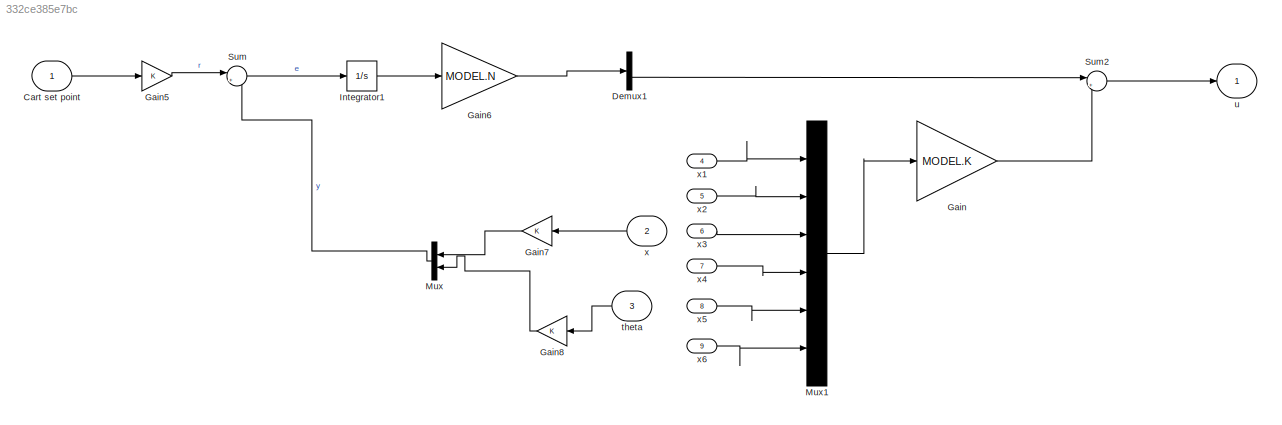
MODEL slx_332ce385e7bc
KIND model
CONFIG AbsTol = auto
CONFIG EnableMultiTasking = on
CONFIG FixedStep = auto
CONFIG MaxStep = auto
CONFIG MinStep = auto
CONFIG RelTol = 1e-3
CONFIG SampleTimeConstraint = Unconstrained
CONFIG SolverName = ode45
CONFIG StartTime = 0.0
CONFIG StopTime = 200.0
BLOCK [Inport] Cart set point
BLOCK [Demux] Demux1
  Outputs = 2
BLOCK [Gain] Gain
  Gain = MODEL.K
  Multiplication = Matrix(K*u)
BLOCK [Gain] Gain5
BLOCK [Gain] Gain6
  Gain = MODEL.N
BLOCK [Gain] Gain7
  NameLocation = top
BLOCK [Gain] Gain8
  NameLocation = top
BLOCK [Integrator] Integrator1
BLOCK [Mux] Mux
  DisplayOption = bar
  Inputs = 2
  NameLocation = top
BLOCK [Mux] Mux1
  DisplayOption = bar
  Inputs = 6
BLOCK [Sum] Sum
  Inputs = |+-
BLOCK [Sum] Sum2
  Inputs = |+-
BLOCK [Inport] theta
  NameLocation = top
  Port = 3
BLOCK [Outport] u
  VectorParamsAs1DForOutWhenUnconnected = off
BLOCK [Inport] x
  NameLocation = top
  Port = 2
BLOCK [Inport] x1
  Port = 4
BLOCK [Inport] x2
  Port = 5
BLOCK [Inport] x3
  Port = 6
BLOCK [Inport] x4
  Port = 7
BLOCK [Inport] x5
  Port = 8
BLOCK [Inport] x6
  Port = 9
LINE Cart set point:1 -> Gain5:1
LINE Demux1:2 -> Sum2:1
LINE Gain5:1 -> Sum:1
LINE Gain6:1 -> Demux1:1
LINE Gain7:1 -> Mux:1
LINE Gain8:1 -> Mux:2
LINE Gain:1 -> Sum2:2
LINE Integrator1:1 -> Gain6:1
LINE Mux1:1 -> Gain:1
LINE Mux:1 -> Sum:2
LINE Sum2:1 -> u:1
LINE Sum:1 -> Integrator1:1
LINE theta:1 -> Gain8:1
LINE x1:1 -> Mux1:1
LINE x2:1 -> Mux1:2
LINE x3:1 -> Mux1:3
LINE x4:1 -> Mux1:4
LINE x5:1 -> Mux1:5
LINE x6:1 -> Mux1:6
LINE x:1 -> Gain7:1
